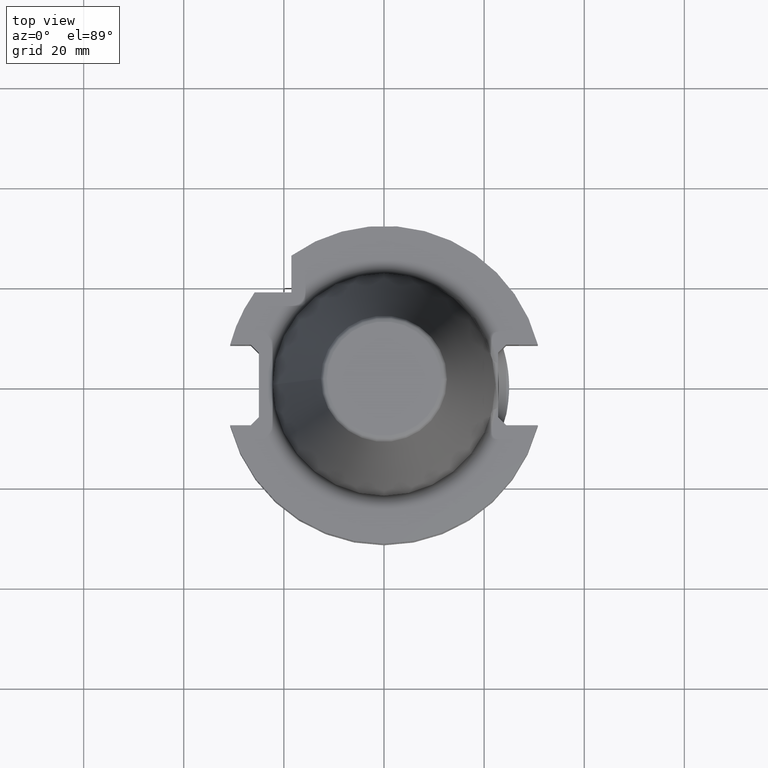
[diagram: clean part render]
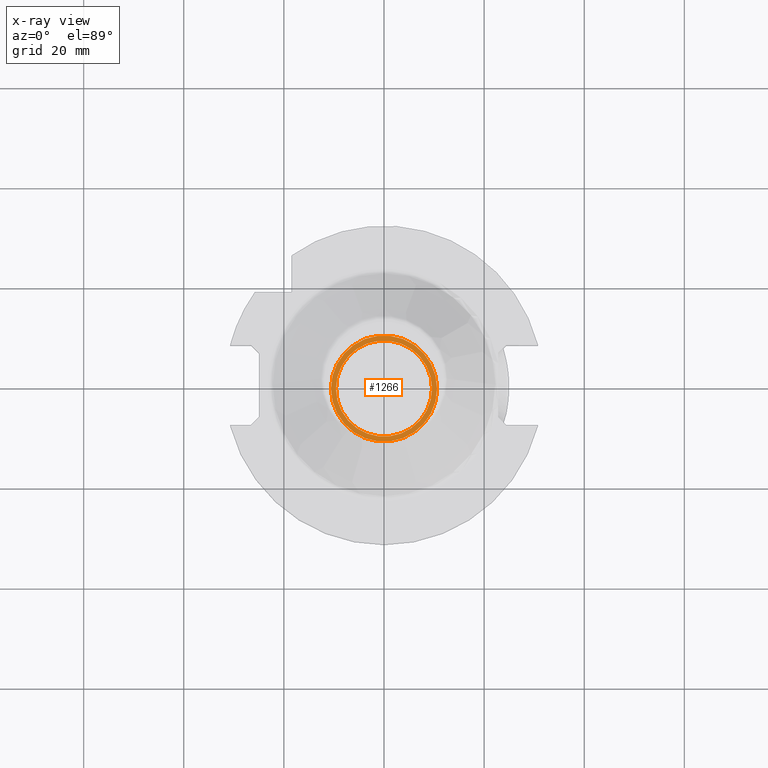
[diagram: x-ray — body ghosted, one internal face saturated and labeled with its STEP entity id]
A machine part, top view, then the same camera in x-ray: the body is ghosted and one INTERNAL B-rep face — a face not visible from any outside direction — is saturated and labeled: STEP entity #1266.
In plain terms, the highlighted planar face has unit normal (0, 0, 1).
Its self-contained STEP definition (entity closure, byte-faithful):
#611=ORIENTED_EDGE('',*,*,#795,.T.);
#612=ORIENTED_EDGE('',*,*,#792,.F.);
#792=EDGE_CURVE('',#916,#916,#975,.T.);
#795=EDGE_CURVE('',#919,#919,#978,.T.);
#916=VERTEX_POINT('',#2533);
#919=VERTEX_POINT('',#2542);
#975=CIRCLE('',#1401,9.59999999999991);
#978=CIRCLE('',#1407,10.5999999999999);
#1064=EDGE_LOOP('',(#611));
#1065=EDGE_LOOP('',(#612));
#1155=FACE_BOUND('',#1064,.T.);
#1156=FACE_BOUND('',#1065,.T.);
#1195=PLANE('',#1406);
#1266=ADVANCED_FACE('',(#1155,#1156),#1195,.T.);
#1401=AXIS2_PLACEMENT_3D('',#2532,#1731,#1732);
#1406=AXIS2_PLACEMENT_3D('',#2540,#1741,#1742);
#1407=AXIS2_PLACEMENT_3D('',#2541,#1743,#1744);
#1731=DIRECTION('',(0.,0.,1.));
#1732=DIRECTION('',(1.,0.,0.));
#1741=DIRECTION('',(0.,0.,1.));
#1742=DIRECTION('',(1.,0.,0.));
#1743=DIRECTION('',(0.,0.,1.));
#1744=DIRECTION('',(1.,0.,0.));
#2532=CARTESIAN_POINT('',(0.,0.,-46.));
#2533=CARTESIAN_POINT('',(9.59999999999991,0.,-46.));
#2540=CARTESIAN_POINT('',(9.59999999999991,0.,-46.));
#2541=CARTESIAN_POINT('',(0.,0.,-46.));
#2542=CARTESIAN_POINT('',(10.5999999999999,0.,-46.));